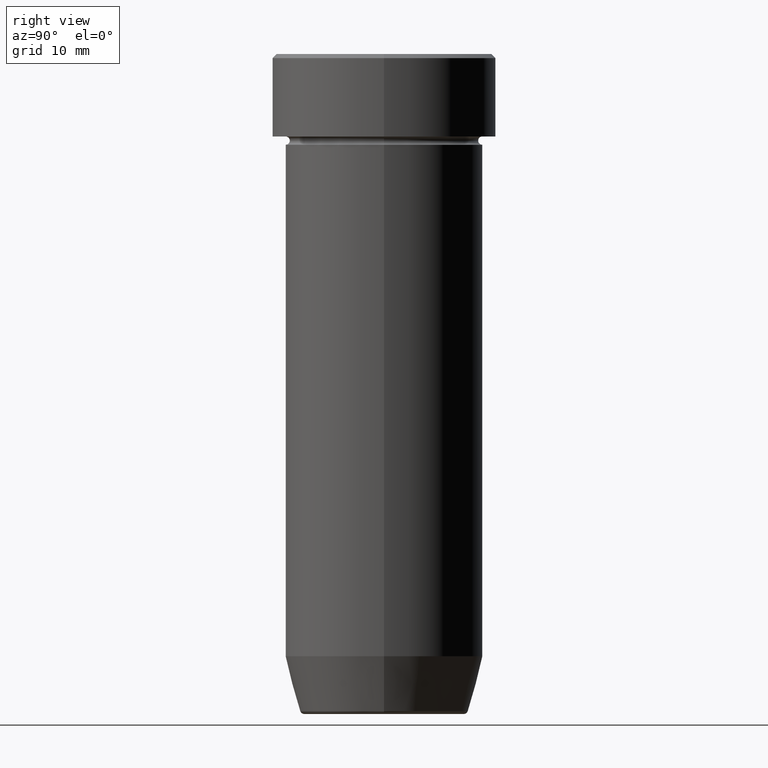
[diagram: clean part render]
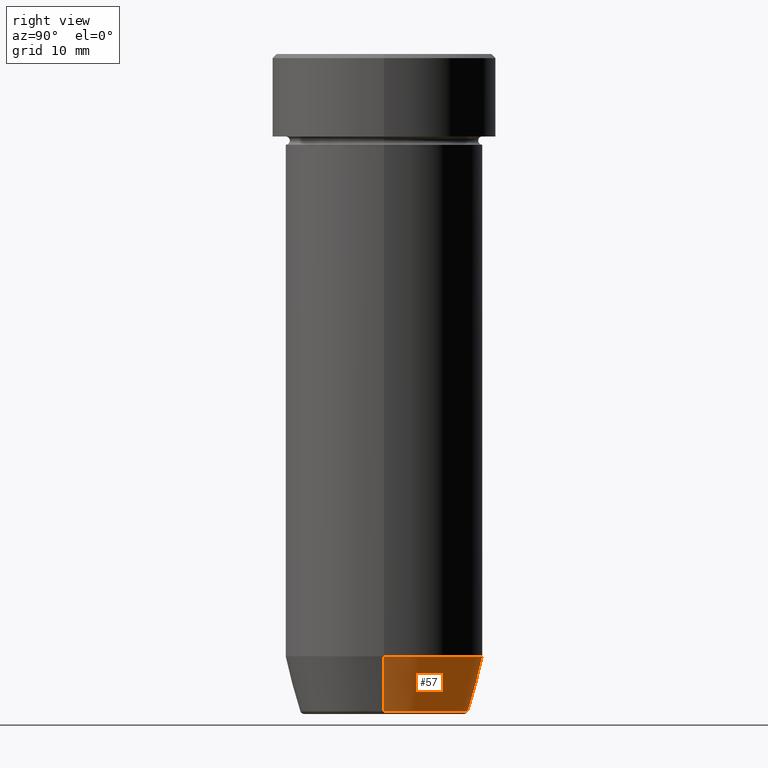
[diagram: same view with one face highlighted and labeled with its STEP entity id]
A machine part, right view. The second image highlights one B-rep face of the part: STEP entity #57.
In plain terms, the highlighted conical surface has half-angle 15 deg.
Its self-contained STEP definition (entity closure, byte-faithful):
#9 = CIRCLE ( 'NONE', #247, 10.22365507213719837 ) ;
#20 = CONICAL_SURFACE ( 'NONE', #443, 10.12435565298214080, 0.2617993877991493523 ) ;
#23 = ORIENTED_EDGE ( 'NONE', *, *, #304, .F. ) ;
#49 = VERTEX_POINT ( 'NONE', #138 ) ;
#52 = DIRECTION ( 'NONE',  ( -0.000000000000000000, -0.000000000000000000, 1.000000000000000000 ) ) ;
#57 = ADVANCED_FACE ( 'NONE', ( #372 ), #20, .T. ) ;
#94 = CARTESIAN_POINT ( 'NONE',  ( 0.000000000000000000, 0.000000000000000000, -80.00000000000000000 ) ) ;
#97 = CARTESIAN_POINT ( 'NONE',  ( -10.12435565298214080, 1.239875974385398941E-15, -80.00000000000000000 ) ) ;
#106 = DIRECTION ( 'NONE',  ( -1.000000000000000000, 0.000000000000000000, 0.000000000000000000 ) ) ;
#138 = CARTESIAN_POINT ( 'NONE',  ( -12.00000000000000000, 1.469576158976823947E-15, -73.00000000000000000 ) ) ;
#149 = AXIS2_PLACEMENT_3D ( 'NONE', #284, #52, #342 ) ;
#152 = VERTEX_POINT ( 'NONE', #225 ) ;
#175 = LINE ( 'NONE', #267, #544 ) ;
#187 = VECTOR ( 'NONE', #383, 1000.000000000000114 ) ;
#225 = CARTESIAN_POINT ( 'NONE',  ( -10.22365507213719837, 1.360806402472383336E-15, -79.62940952255127058 ) ) ;
#247 = AXIS2_PLACEMENT_3D ( 'NONE', #518, #549, #106 ) ;
#256 = CARTESIAN_POINT ( 'NONE',  ( 10.22365507213719837, 0.000000000000000000, -79.62940952255127058 ) ) ;
#267 = CARTESIAN_POINT ( 'NONE',  ( 10.12435565298214080, 0.000000000000000000, -80.00000000000000000 ) ) ;
#268 = EDGE_CURVE ( 'NONE', #474, #152, #9, .T. ) ;
#284 = CARTESIAN_POINT ( 'NONE',  ( 0.000000000000000000, 0.000000000000000000, -73.00000000000000000 ) ) ;
#296 = EDGE_CURVE ( 'NONE', #152, #49, #503, .T. ) ;
#304 = EDGE_CURVE ( 'NONE', #378, #49, #401, .T. ) ;
#305 = ORIENTED_EDGE ( 'NONE', *, *, #268, .T. ) ;
#313 = DIRECTION ( 'NONE',  ( 0.2588190451025206840, 0.000000000000000000, 0.9659258262890683122 ) ) ;
#319 = DIRECTION ( 'NONE',  ( 1.000000000000000000, 0.000000000000000000, 0.000000000000000000 ) ) ;
#320 = ORIENTED_EDGE ( 'NONE', *, *, #406, .F. ) ;
#342 = DIRECTION ( 'NONE',  ( 1.000000000000000000, 0.000000000000000000, 0.000000000000000000 ) ) ;
#372 = FACE_OUTER_BOUND ( 'NONE', #473, .T. ) ;
#377 = DIRECTION ( 'NONE',  ( -0.000000000000000000, -0.000000000000000000, 1.000000000000000000 ) ) ;
#378 = VERTEX_POINT ( 'NONE', #489 ) ;
#383 = DIRECTION ( 'NONE',  ( -0.2588190451025206840, 3.169619151431763092E-17, 0.9659258262890683122 ) ) ;
#401 = CIRCLE ( 'NONE', #149, 12.00000000000000000 ) ;
#406 = EDGE_CURVE ( 'NONE', #474, #378, #175, .T. ) ;
#443 = AXIS2_PLACEMENT_3D ( 'NONE', #94, #377, #319 ) ;
#466 = ORIENTED_EDGE ( 'NONE', *, *, #296, .T. ) ;
#473 = EDGE_LOOP ( 'NONE', ( #305, #466, #23, #320 ) ) ;
#474 = VERTEX_POINT ( 'NONE', #256 ) ;
#489 = CARTESIAN_POINT ( 'NONE',  ( 12.00000000000000000, 0.000000000000000000, -73.00000000000000000 ) ) ;
#503 = LINE ( 'NONE', #97, #187 ) ;
#518 = CARTESIAN_POINT ( 'NONE',  ( 0.000000000000000000, 0.000000000000000000, -79.62940952255127058 ) ) ;
#544 = VECTOR ( 'NONE', #313, 1000.000000000000114 ) ;
#549 = DIRECTION ( 'NONE',  ( -0.000000000000000000, -0.000000000000000000, 1.000000000000000000 ) ) ;